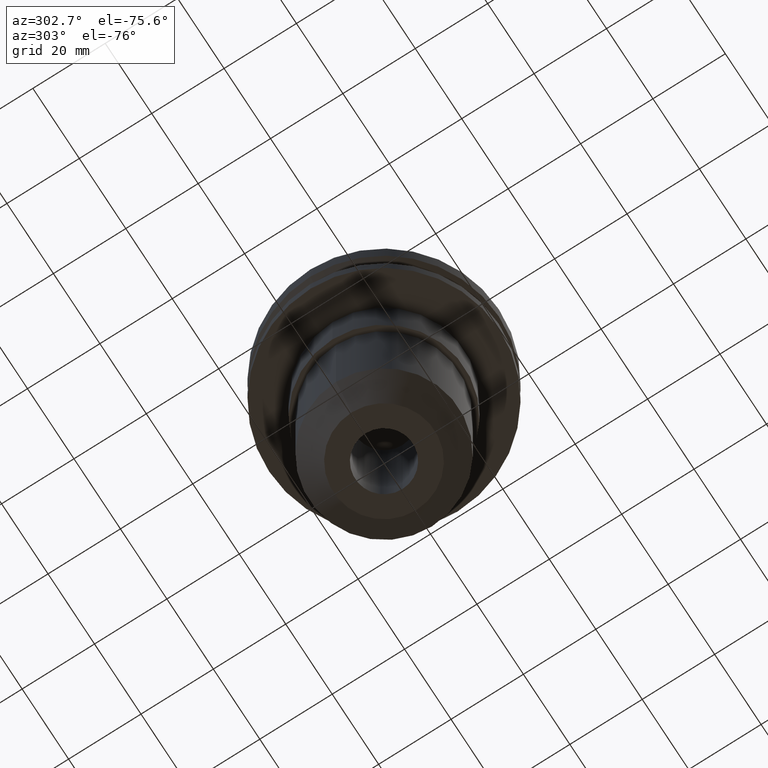
[diagram: clean part render]
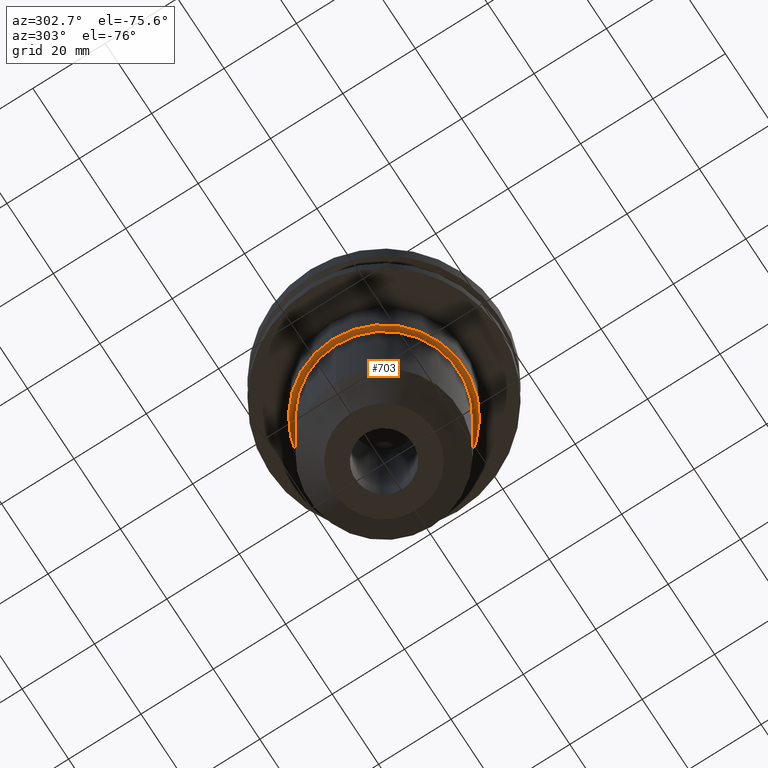
[diagram: same view with one face highlighted and labeled with its STEP entity id]
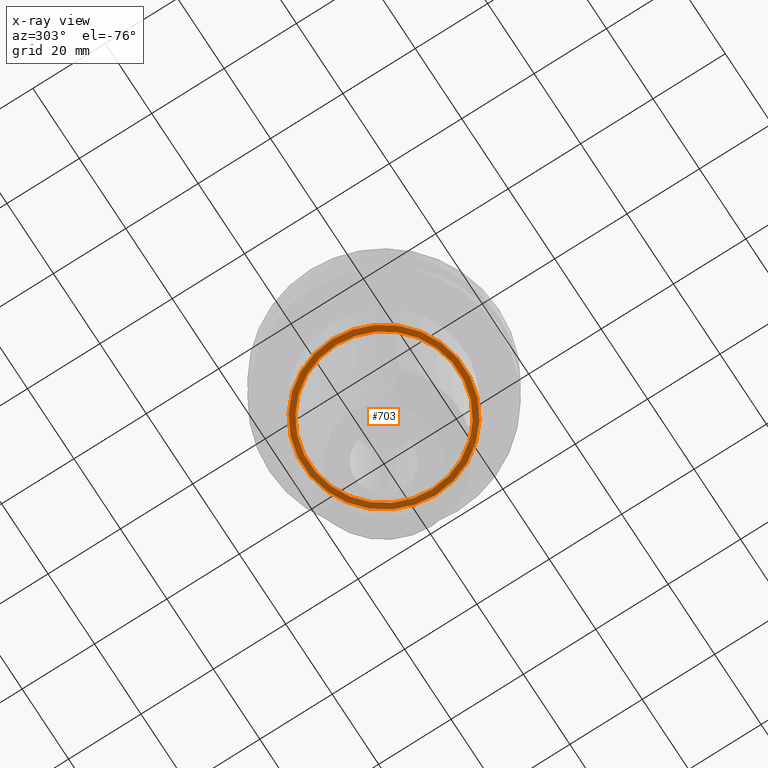
[diagram: x-ray of the same camera — body ghosted, the highlighted face saturated]
A machine part, auxiliary view. The second image highlights one B-rep face of the part: STEP entity #703.
The next image is the same camera in x-ray: the body ghosted, the highlighted face saturated — about 42% of this face is hidden behind the body in this view.
In plain terms, the highlighted planar face has unit normal (0, -0, 1).
Its self-contained STEP definition (entity closure, byte-faithful):
#10 = CARTESIAN_POINT ( 'NONE',  ( 0.000000000000000000, 22.22499999999999787, -35.04999999999999716 ) ) ;
#35 = VERTEX_POINT ( 'NONE', #68 ) ;
#42 = AXIS2_PLACEMENT_3D ( 'NONE', #312, #577, #833 ) ;
#67 = CARTESIAN_POINT ( 'NONE',  ( 20.63749999999999929, 0.000000000000000000, -35.04999999999999716 ) ) ;
#68 = CARTESIAN_POINT ( 'NONE',  ( 22.22499999999999787, 0.000000000000000000, -35.04999999999999716 ) ) ;
#100 = DIRECTION ( 'NONE',  ( -0.000000000000000000, -0.000000000000000000, 1.000000000000000000 ) ) ;
#140 = PLANE ( 'NONE',  #243 ) ;
#162 = DIRECTION ( 'NONE',  ( 1.000000000000000000, 0.000000000000000000, 0.000000000000000000 ) ) ;
#210 = DIRECTION ( 'NONE',  ( 1.000000000000000000, 0.000000000000000000, 0.000000000000000000 ) ) ;
#227 = AXIS2_PLACEMENT_3D ( 'NONE', #608, #401, #210 ) ;
#243 = AXIS2_PLACEMENT_3D ( 'NONE', #10, #719, #772 ) ;
#247 = VERTEX_POINT ( 'NONE', #426 ) ;
#259 = ORIENTED_EDGE ( 'NONE', *, *, #753, .F. ) ;
#305 = DIRECTION ( 'NONE',  ( -0.000000000000000000, -0.000000000000000000, 1.000000000000000000 ) ) ;
#312 = CARTESIAN_POINT ( 'NONE',  ( 0.000000000000000000, 0.000000000000000000, -35.04999999999999716 ) ) ;
#331 = EDGE_CURVE ( 'NONE', #579, #35, #761, .T. ) ;
#348 = FACE_BOUND ( 'NONE', #353, .T. ) ;
#353 = EDGE_LOOP ( 'NONE', ( #560, #805 ) ) ;
#363 = AXIS2_PLACEMENT_3D ( 'NONE', #430, #100, #162 ) ;
#364 = CIRCLE ( 'NONE', #227, 20.63749999999999929 ) ;
#401 = DIRECTION ( 'NONE',  ( 0.000000000000000000, 0.000000000000000000, -1.000000000000000000 ) ) ;
#413 = FACE_OUTER_BOUND ( 'NONE', #796, .T. ) ;
#426 = CARTESIAN_POINT ( 'NONE',  ( -20.63749999999999929, 2.527364831740350249E-15, -35.04999999999999716 ) ) ;
#430 = CARTESIAN_POINT ( 'NONE',  ( 0.000000000000000000, 0.000000000000000000, -35.04999999999999716 ) ) ;
#431 = VERTEX_POINT ( 'NONE', #67 ) ;
#438 = AXIS2_PLACEMENT_3D ( 'NONE', #716, #305, #524 ) ;
#490 = CIRCLE ( 'NONE', #42, 20.63749999999999929 ) ;
#524 = DIRECTION ( 'NONE',  ( 1.000000000000000000, 0.000000000000000000, 0.000000000000000000 ) ) ;
#560 = ORIENTED_EDGE ( 'NONE', *, *, #814, .F. ) ;
#577 = DIRECTION ( 'NONE',  ( 0.000000000000000000, 0.000000000000000000, -1.000000000000000000 ) ) ;
#579 = VERTEX_POINT ( 'NONE', #821 ) ;
#608 = CARTESIAN_POINT ( 'NONE',  ( 0.000000000000000000, 0.000000000000000000, -35.04999999999999716 ) ) ;
#703 = ADVANCED_FACE ( 'NONE', ( #413, #348 ), #140, .F. ) ;
#716 = CARTESIAN_POINT ( 'NONE',  ( 0.000000000000000000, 0.000000000000000000, -35.04999999999999716 ) ) ;
#719 = DIRECTION ( 'NONE',  ( 0.000000000000000000, -0.000000000000000000, 1.000000000000000000 ) ) ;
#726 = CIRCLE ( 'NONE', #438, 22.22499999999999787 ) ;
#753 = EDGE_CURVE ( 'NONE', #35, #579, #726, .T. ) ;
#761 = CIRCLE ( 'NONE', #363, 22.22499999999999787 ) ;
#772 = DIRECTION ( 'NONE',  ( 1.000000000000000000, 0.000000000000000000, 0.000000000000000000 ) ) ;
#796 = EDGE_LOOP ( 'NONE', ( #259, #835 ) ) ;
#805 = ORIENTED_EDGE ( 'NONE', *, *, #843, .F. ) ;
#814 = EDGE_CURVE ( 'NONE', #431, #247, #490, .T. ) ;
#821 = CARTESIAN_POINT ( 'NONE',  ( -22.22499999999999787, 2.721777511104992454E-15, -35.04999999999999716 ) ) ;
#833 = DIRECTION ( 'NONE',  ( 1.000000000000000000, 0.000000000000000000, 0.000000000000000000 ) ) ;
#835 = ORIENTED_EDGE ( 'NONE', *, *, #331, .F. ) ;
#843 = EDGE_CURVE ( 'NONE', #247, #431, #364, .T. ) ;